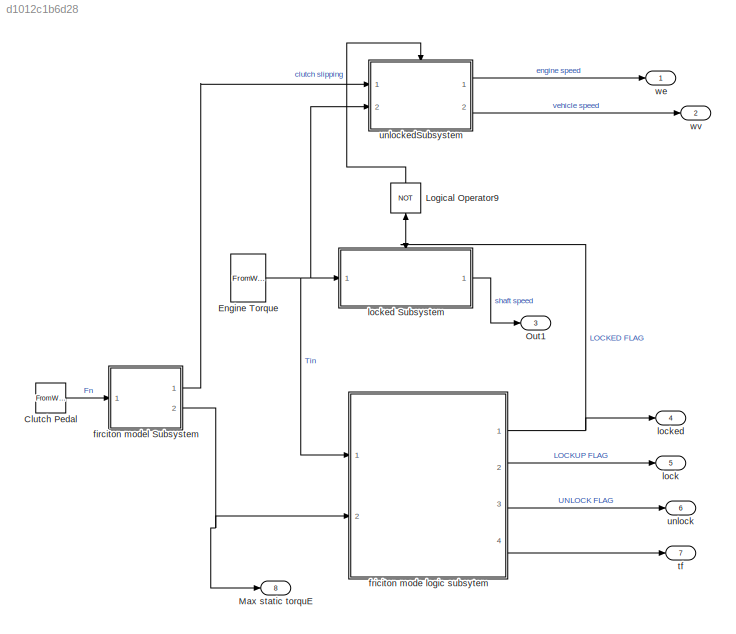
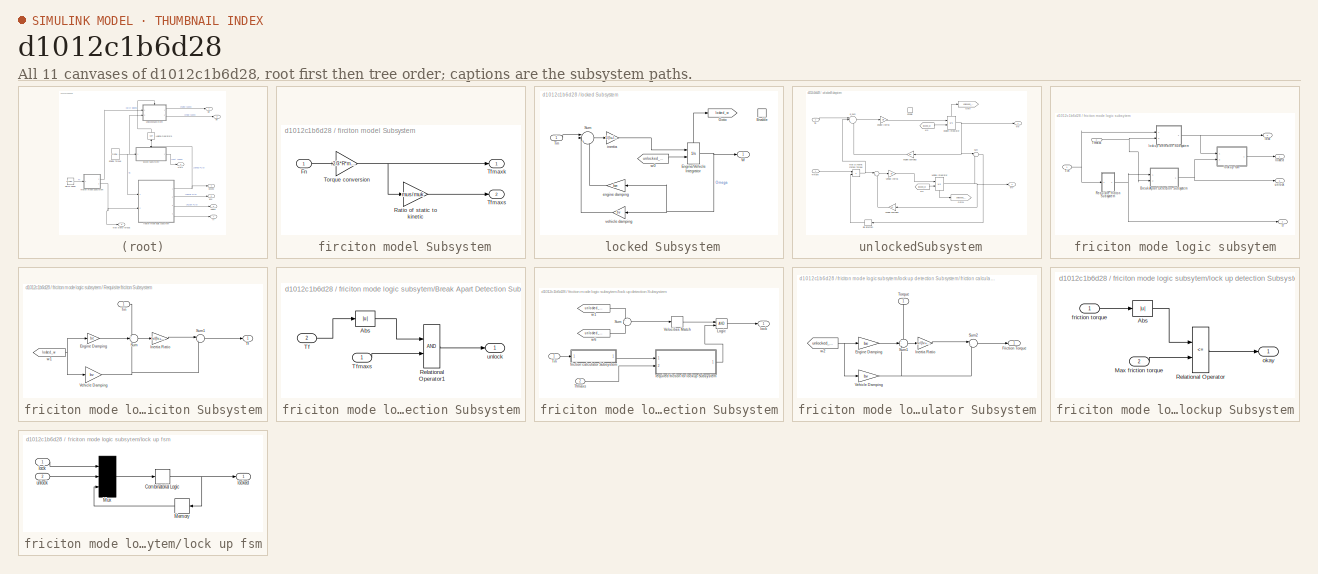
[diagram: thumbnail index - all 11 canvases of the model, root first then tree order]
MODEL slx_d1012c1b6d28
KIND model
CONFIG AbsTol = auto
CONFIG EnableMultiTasking = off
CONFIG FixedStep = auto
CONFIG MaxStep = auto
CONFIG MinStep = auto
CONFIG RelTol = 1e-3
CONFIG SampleTimeConstraint = Unconstrained
CONFIG Solver = VariableStepAuto
CONFIG SolverName = VariableStepAuto
CONFIG StartTime = 0.0
CONFIG StopTime = 10.0
BLOCK [SubSystem]  firciton model Subsystem
  Ports = [1, 2]
  RequestExecContextInheritance = off
BLOCK [Inport]  firciton model Subsystem/Fn
BLOCK [Gain]  firciton model Subsystem/Ratio of static to kinetic
  Gain = mus/muk
  OutDataTypeStr = Inherit: Same as input
  ParamDataTypeStr = Inherit: Same as input
  SaturateOnIntegerOverflow = on
BLOCK [Outport]  firciton model Subsystem/Tfmaxk
  InitialOutput = 0
  VectorParamsAs1DForOutWhenUnconnected = off
BLOCK [Outport]  firciton model Subsystem/Tfmaxs
  InitialOutput = 0
  Port = 2
  VectorParamsAs1DForOutWhenUnconnected = off
BLOCK [Gain]  firciton model Subsystem/Torque conversion
  Gain = 2/3*R*muk
  OutDataTypeStr = Inherit: Same as input
  ParamDataTypeStr = Inherit: Same as input
  SaturateOnIntegerOverflow = on
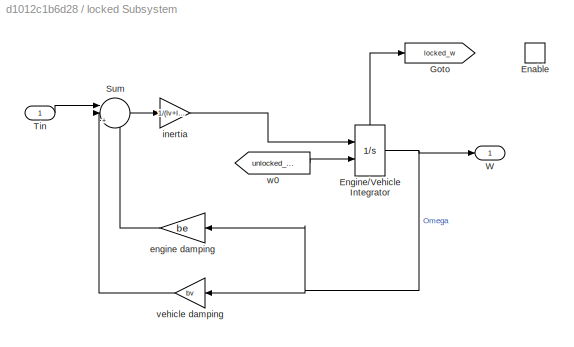
BLOCK [SubSystem]  locked Subsystem
  Ports = [1, 1, 1]
  RequestExecContextInheritance = off
BLOCK [EnablePort]  locked Subsystem/Enable
  Ports = []
BLOCK [Integrator]  locked Subsystem/Engine//Vehicle Integrator
  InitialConditionSource = external
  Ports = [2, 1, 0, 0, 1]
  ShowStatePort = on
BLOCK [Goto]  locked Subsystem/Goto
  GotoTag = locked_w
  NameLocation = top
  TagVisibility = global
BLOCK [Sum]  locked Subsystem/Sum
  InputSameDT = on
  Inputs = ||+--
  OutDataTypeStr = Inherit: Same as first input
  Ports = [3, 1]
  SaturateOnIntegerOverflow = on
BLOCK [Inport]  locked Subsystem/Tin
BLOCK [Outport]  locked Subsystem/W
BLOCK [Gain]  locked Subsystem/engine damping
  Gain = be
  NameLocation = top
BLOCK [Gain]  locked Subsystem/inertia
  Gain = 1/(Iv+Ie)
BLOCK [Gain]  locked Subsystem/vehicle damping
  Gain = bv
  NameLocation = top
BLOCK [From]  locked Subsystem/w0
  GotoTag = unlocked_we
  TagVisibility = global
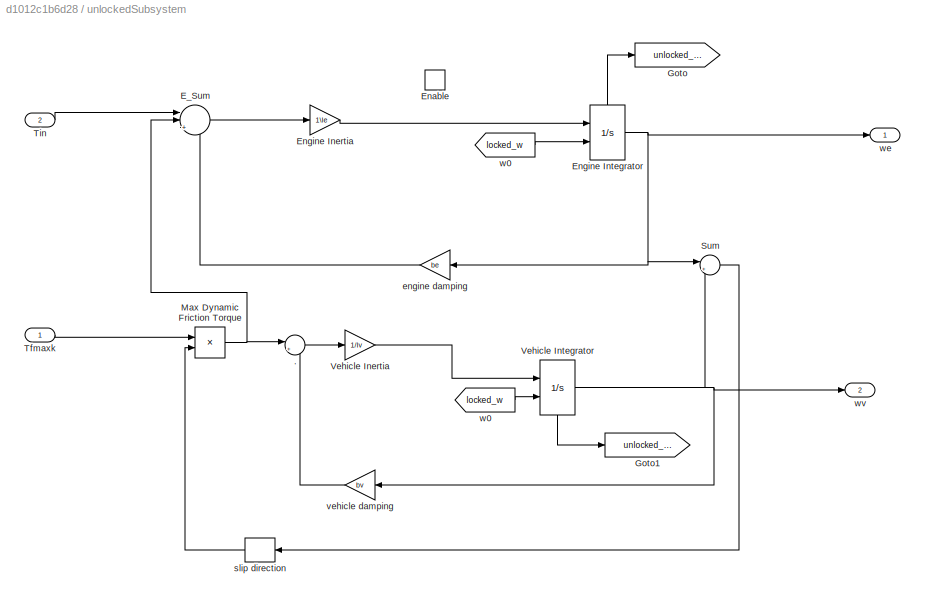
BLOCK [SubSystem]  unlockedSubsystem
  Ports = [2, 2, 1]
  RequestExecContextInheritance = off
BLOCK [Sum]  unlockedSubsystem/.
  InputSameDT = on
  Inputs = |+-
  NameLocation = top
  OutDataTypeStr = Inherit: Same as first input
  Ports = [2, 1]
  SaturateOnIntegerOverflow = on
BLOCK [Sum]  unlockedSubsystem/E_Sum
  InputSameDT = on
  Inputs = ||+--
  NameLocation = top
  OutDataTypeStr = Inherit: Same as first input
  Ports = [3, 1]
  SaturateOnIntegerOverflow = on
BLOCK [EnablePort]  unlockedSubsystem/Enable
  Ports = []
BLOCK [Gain]  unlockedSubsystem/Engine Inertia
  Gain = 1\Ie
BLOCK [Integrator]  unlockedSubsystem/Engine Integrator
  InitialConditionSource = external
  Ports = [2, 1, 0, 0, 1]
  ShowStatePort = on
BLOCK [Goto]  unlockedSubsystem/Goto
  GotoTag = unlocked_we
  TagVisibility = global
BLOCK [Goto]  unlockedSubsystem/Goto1
  GotoTag = unlocked_wv
  TagVisibility = global
BLOCK [Product]  unlockedSubsystem/Max Dynamic Friction Torque
  Ports = [2, 1]
BLOCK [Sum]  unlockedSubsystem/Sum
  Inputs = |+-
  Ports = [2, 1]
BLOCK [Inport]  unlockedSubsystem/Tfmaxk
BLOCK [Inport]  unlockedSubsystem/Tin
  Port = 2
BLOCK [Gain]  unlockedSubsystem/Vehicle Inertia
  Gain = 1/Iv
BLOCK [Integrator]  unlockedSubsystem/Vehicle Integrator
  InitialConditionSource = external
  NameLocation = top
  Ports = [2, 1, 0, 0, 1]
  ShowStatePort = on
BLOCK [Gain]  unlockedSubsystem/engine damping
  Gain = be
  NameLocation = top
BLOCK [Signum]  unlockedSubsystem/slip direction
BLOCK [Gain]  unlockedSubsystem/vehicle damping
  Gain = bv
  NameLocation = top
BLOCK [From]  unlockedSubsystem/w0
  GotoTag = locked_w
  TagVisibility = global
BLOCK [From]  unlockedSubsystem/w0 
  GotoTag = locked_w
  TagVisibility = global
BLOCK [Outport]  unlockedSubsystem/we
BLOCK [Outport]  unlockedSubsystem/wv
  Port = 2
BLOCK [FromWorkspace] Clutch Pedal
  VariableName = Fn
  ZeroCross = off
BLOCK [FromWorkspace] Engine Torque
  VariableName = Tin
  ZeroCross = off
BLOCK [Logic] Logical Operator9
  IconShape = distinctive
  Inputs = 1
  NameLocation = left
  Operator = NOT
  OutDataTypeStr = boolean
  Ports = [1, 1]
BLOCK [Outport] Max static torquE
  Port = 8
BLOCK [Outport] Out1
  Port = 3
BLOCK [SubSystem] friciton mode logic subsytem
  Ports = [2, 4]
  RequestExecContextInheritance = off
BLOCK [SubSystem] friciton mode logic subsytem/ Requisite friciton Subsystem
  Ports = [1, 1]
  RequestExecContextInheritance = off
BLOCK [Gain] friciton mode logic subsytem/ Requisite friciton Subsystem/Engine Damping
  Gain = be
  NameLocation = top
  OutDataTypeStr = Inherit: Same as input
  ParamDataTypeStr = Inherit: Same as input
  SaturateOnIntegerOverflow = on
BLOCK [Gain] friciton mode logic subsytem/ Requisite friciton Subsystem/Inertia Ratio
  Gain = Iv/(Iv+Ie)
  OutDataTypeStr = Inherit: Same as input
  ParamDataTypeStr = Inherit: Same as input
  SaturateOnIntegerOverflow = on
BLOCK [Sum] friciton mode logic subsytem/ Requisite friciton Subsystem/Sum
  InputSameDT = on
  Inputs = +--
  OutDataTypeStr = Inherit: Same as first input
  Ports = [3, 1]
  SaturateOnIntegerOverflow = on
BLOCK [Sum] friciton mode logic subsytem/ Requisite friciton Subsystem/Sum1
  InputSameDT = on
  Inputs = |++
  OutDataTypeStr = Inherit: Same as first input
  Ports = [2, 1]
  SaturateOnIntegerOverflow = on
BLOCK [Outport] friciton mode logic subsytem/ Requisite friciton Subsystem/Tf
  InitialOutput = 0
  VectorParamsAs1DForOutWhenUnconnected = off
BLOCK [Inport] friciton mode logic subsytem/ Requisite friciton Subsystem/Tin
BLOCK [Gain] friciton mode logic subsytem/ Requisite friciton Subsystem/Vehicle Damping
  Gain = bv
  OutDataTypeStr = Inherit: Same as input
  ParamDataTypeStr = Inherit: Same as input
  SaturateOnIntegerOverflow = on
BLOCK [From] friciton mode logic subsytem/ Requisite friciton Subsystem/w1
  GotoTag = locked_w
  NameLocation = top
  TagVisibility = global
BLOCK [SubSystem] friciton mode logic subsytem/Break Apart Detection Subsystem
  Ports = [2, 1]
  RequestExecContextInheritance = off
BLOCK [Abs] friciton mode logic subsytem/Break Apart Detection Subsystem/Abs
BLOCK [RelationalOperator] friciton mode logic subsytem/Break Apart Detection Subsystem/Relational Operator1
  OutDataTypeStr = boolean
  Ports = [2, 1]
BLOCK [Inport] friciton mode logic subsytem/Break Apart Detection Subsystem/Tf
  Port = 2
BLOCK [Inport] friciton mode logic subsytem/Break Apart Detection Subsystem/Tfmaxs
BLOCK [Outport] friciton mode logic subsytem/Break Apart Detection Subsystem/unlock
BLOCK [Inport] friciton mode logic subsytem/Tfmaxs
  Port = 2
BLOCK [Inport] friciton mode logic subsytem/Tin
BLOCK [Outport] friciton mode logic subsytem/lock
  Port = 2
BLOCK [SubSystem] friciton mode logic subsytem/lock up detection Subsystem
  Ports = [2, 1]
  RequestExecContextInheritance = off
BLOCK [SubSystem] friciton mode logic subsytem/lock up detection Subsystem/ friction calculator Subsystem
  Ports = [1, 1]
  RequestExecContextInheritance = off
BLOCK [Gain] friciton mode logic subsytem/lock up detection Subsystem/ friction calculator Subsystem/Engine Damping
  Gain = be
  NameLocation = top
  OutDataTypeStr = Inherit: Same as input
  ParamDataTypeStr = Inherit: Same as input
  SaturateOnIntegerOverflow = on
BLOCK [Outport] friciton mode logic subsytem/lock up detection Subsystem/ friction calculator Subsystem/Friction Torque
  InitialOutput = 0
  VectorParamsAs1DForOutWhenUnconnected = off
BLOCK [Gain] friciton mode logic subsytem/lock up detection Subsystem/ friction calculator Subsystem/Inertia Ratio
  Gain = Iv/(Iv+Ie)
  OutDataTypeStr = Inherit: Same as input
  ParamDataTypeStr = Inherit: Same as input
  SaturateOnIntegerOverflow = on
BLOCK [Sum] friciton mode logic subsytem/lock up detection Subsystem/ friction calculator Subsystem/Sum1
  InputSameDT = on
  Inputs = +--
  OutDataTypeStr = Inherit: Same as first input
  Ports = [3, 1]
  SaturateOnIntegerOverflow = on
BLOCK [Sum] friciton mode logic subsytem/lock up detection Subsystem/ friction calculator Subsystem/Sum2
  InputSameDT = on
  Inputs = |++
  OutDataTypeStr = Inherit: Same as first input
  Ports = [2, 1]
  SaturateOnIntegerOverflow = on
BLOCK [Inport] friciton mode logic subsytem/lock up detection Subsystem/ friction calculator Subsystem/Torque
  NameLocation = left
BLOCK [Gain] friciton mode logic subsytem/lock up detection Subsystem/ friction calculator Subsystem/Vehicle Damping
  Gain = bv
  OutDataTypeStr = Inherit: Same as input
  ParamDataTypeStr = Inherit: Same as input
  SaturateOnIntegerOverflow = on
BLOCK [From] friciton mode logic subsytem/lock up detection Subsystem/ friction calculator Subsystem/w2
  GotoTag = unlocked_we
  TagVisibility = global
BLOCK [SubSystem] friciton mode logic subsytem/lock up detection Subsystem/ required  friction for lockup Subsystem
  Ports = [2, 1]
  RequestExecContextInheritance = off
BLOCK [Abs] friciton mode logic subsytem/lock up detection Subsystem/ required  friction for lockup Subsystem/Abs
BLOCK [Inport] friciton mode logic subsytem/lock up detection Subsystem/ required  friction for lockup Subsystem/Max friction torque
  Port = 2
BLOCK [RelationalOperator] friciton mode logic subsytem/lock up detection Subsystem/ required  friction for lockup Subsystem/Relational Operator
  Operator = <=
  OutDataTypeStr = boolean
  Ports = [2, 1]
BLOCK [Inport] friciton mode logic subsytem/lock up detection Subsystem/ required  friction for lockup Subsystem/friction torque
BLOCK [Outport] friciton mode logic subsytem/lock up detection Subsystem/ required  friction for lockup Subsystem/okay
BLOCK [Logic] friciton mode logic subsytem/lock up detection Subsystem/Logic
  AttributesFormatString = (%<Operator>)
  IconShape = distinctive
  OutDataTypeStr = boolean
  Ports = [2, 1]
BLOCK [Sum] friciton mode logic subsytem/lock up detection Subsystem/Sum
  InputSameDT = on
  Inputs = +-
  OutDataTypeStr = Inherit: Same as first input
  Ports = [2, 1]
  SaturateOnIntegerOverflow = on
BLOCK [Inport] friciton mode logic subsytem/lock up detection Subsystem/Tfmaxs
  Port = 2
BLOCK [Inport] friciton mode logic subsytem/lock up detection Subsystem/Tin
BLOCK [HitCross] friciton mode logic subsytem/lock up detection Subsystem/Velocities Match
  Ports = [1, 1]
BLOCK [Outport] friciton mode logic subsytem/lock up detection Subsystem/lock
BLOCK [From] friciton mode logic subsytem/lock up detection Subsystem/w1
  GotoTag = unlocked_we
  TagVisibility = global
BLOCK [From] friciton mode logic subsytem/lock up detection Subsystem/w6
  GotoTag = unlocked_wv
  TagVisibility = global
BLOCK [SubSystem] friciton mode logic subsytem/lock up fsm
  Ports = [2, 1]
  RequestExecContextInheritance = off
BLOCK [CombinatorialLogic] friciton mode logic subsytem/lock up fsm/Combinatorial Logic
  TruthTable = [0;1;0;0;1;1;1;0]
BLOCK [Inport] friciton mode logic subsytem/lock up fsm/Iock
BLOCK [Memory] friciton mode logic subsytem/lock up fsm/Memory
BLOCK [Mux] friciton mode logic subsytem/lock up fsm/Mux
  Inputs = 3
  Ports = [3, 1]
BLOCK [Outport] friciton mode logic subsytem/lock up fsm/locked
BLOCK [Inport] friciton mode logic subsytem/lock up fsm/unlock
  Port = 2
BLOCK [Outport] friciton mode logic subsytem/locked
BLOCK [Outport] friciton mode logic subsytem/tf
  Port = 4
BLOCK [Outport] friciton mode logic subsytem/unlock
  Port = 3
BLOCK [Outport] lock
  Port = 5
BLOCK [Outport] locked
  Port = 4
BLOCK [Outport] tf
  Port = 7
BLOCK [Outport] unlock
  Port = 6
BLOCK [Outport] we
BLOCK [Outport] wv
  Port = 2
LINE  firciton model Subsystem/Fn:1 ->  firciton model Subsystem/Torque conversion:1
LINE  firciton model Subsystem/Ratio of static to kinetic:1 ->  firciton model Subsystem/Tfmaxs:1
NET  firciton model Subsystem/Torque conversion:1 ->  firciton model Subsystem/Ratio of static to kinetic:1,  firciton model Subsystem/Tfmaxk:1
LINE  firciton model Subsystem:1 ->  unlockedSubsystem:1
NET  firciton model Subsystem:2 -> Max static torquE:1, friciton mode logic subsytem:2
NET  locked Subsystem/Engine//Vehicle Integrator:1 ->  locked Subsystem/W:1,  locked Subsystem/engine damping:1,  locked Subsystem/vehicle damping:1
LINE  locked Subsystem/Engine//Vehicle Integrator:state ->  locked Subsystem/Goto:1
LINE  locked Subsystem/Sum:1 ->  locked Subsystem/inertia:1
LINE  locked Subsystem/Tin:1 ->  locked Subsystem/Sum:1
LINE  locked Subsystem/engine damping:1 ->  locked Subsystem/Sum:3
LINE  locked Subsystem/inertia:1 ->  locked Subsystem/Engine//Vehicle Integrator:1
LINE  locked Subsystem/vehicle damping:1 ->  locked Subsystem/Sum:2
LINE  locked Subsystem/w0:1 ->  locked Subsystem/Engine//Vehicle Integrator:2
LINE  locked Subsystem:1 -> Out1:1
LINE  unlockedSubsystem/.:1 ->  unlockedSubsystem/Vehicle Inertia:1
LINE  unlockedSubsystem/E_Sum:1 ->  unlockedSubsystem/Engine Inertia:1
LINE  unlockedSubsystem/Engine Inertia:1 ->  unlockedSubsystem/Engine Integrator:1
NET  unlockedSubsystem/Engine Integrator:1 ->  unlockedSubsystem/Sum:1,  unlockedSubsystem/engine damping:1,  unlockedSubsystem/we:1
LINE  unlockedSubsystem/Engine Integrator:state ->  unlockedSubsystem/Goto:1
NET  unlockedSubsystem/Max Dynamic Friction Torque:1 ->  unlockedSubsystem/.:1,  unlockedSubsystem/E_Sum:2
LINE  unlockedSubsystem/Sum:1 ->  unlockedSubsystem/slip direction:1
LINE  unlockedSubsystem/Tfmaxk:1 ->  unlockedSubsystem/Max Dynamic Friction Torque:1
LINE  unlockedSubsystem/Tin:1 ->  unlockedSubsystem/E_Sum:1
LINE  unlockedSubsystem/Vehicle Inertia:1 ->  unlockedSubsystem/Vehicle Integrator:1
NET  unlockedSubsystem/Vehicle Integrator:1 ->  unlockedSubsystem/Sum:2,  unlockedSubsystem/vehicle damping:1,  unlockedSubsystem/wv:1
LINE  unlockedSubsystem/Vehicle Integrator:state ->  unlockedSubsystem/Goto1:1
LINE  unlockedSubsystem/engine damping:1 ->  unlockedSubsystem/E_Sum:3
LINE  unlockedSubsystem/slip direction:1 ->  unlockedSubsystem/Max Dynamic Friction Torque:2
LINE  unlockedSubsystem/vehicle damping:1 ->  unlockedSubsystem/.:2
LINE  unlockedSubsystem/w0 :1 ->  unlockedSubsystem/Engine Integrator:2
LINE  unlockedSubsystem/w0:1 ->  unlockedSubsystem/Vehicle Integrator:2
LINE  unlockedSubsystem:1 -> we:1
LINE  unlockedSubsystem:2 -> wv:1
LINE Clutch Pedal:1 ->  firciton model Subsystem:1
NET Engine Torque:1 ->  locked Subsystem:1,  unlockedSubsystem:2, friciton mode logic subsytem:1
LINE Logical Operator9:1 ->  unlockedSubsystem:enable
LINE friciton mode logic subsytem/ Requisite friciton Subsystem/Engine Damping:1 -> friciton mode logic subsytem/ Requisite friciton Subsystem/Sum:2
LINE friciton mode logic subsytem/ Requisite friciton Subsystem/Inertia Ratio:1 -> friciton mode logic subsytem/ Requisite friciton Subsystem/Sum1:1
LINE friciton mode logic subsytem/ Requisite friciton Subsystem/Sum1:1 -> friciton mode logic subsytem/ Requisite friciton Subsystem/Tf:1
LINE friciton mode logic subsytem/ Requisite friciton Subsystem/Sum:1 -> friciton mode logic subsytem/ Requisite friciton Subsystem/Inertia Ratio:1
LINE friciton mode logic subsytem/ Requisite friciton Subsystem/Tin:1 -> friciton mode logic subsytem/ Requisite friciton Subsystem/Sum:1
NET friciton mode logic subsytem/ Requisite friciton Subsystem/Vehicle Damping:1 -> friciton mode logic subsytem/ Requisite friciton Subsystem/Sum1:2, friciton mode logic subsytem/ Requisite friciton Subsystem/Sum:3
NET friciton mode logic subsytem/ Requisite friciton Subsystem/w1:1 -> friciton mode logic subsytem/ Requisite friciton Subsystem/Engine Damping:1, friciton mode logic subsytem/ Requisite friciton Subsystem/Vehicle Damping:1
NET friciton mode logic subsytem/ Requisite friciton Subsystem:1 -> friciton mode logic subsytem/Break Apart Detection Subsystem:1, friciton mode logic subsytem/tf:1
LINE friciton mode logic subsytem/Break Apart Detection Subsystem/Abs:1 -> friciton mode logic subsytem/Break Apart Detection Subsystem/Relational Operator1:1
LINE friciton mode logic subsytem/Break Apart Detection Subsystem/Relational Operator1:1 -> friciton mode logic subsytem/Break Apart Detection Subsystem/unlock:1
LINE friciton mode logic subsytem/Break Apart Detection Subsystem/Tf:1 -> friciton mode logic subsytem/Break Apart Detection Subsystem/Abs:1
LINE friciton mode logic subsytem/Break Apart Detection Subsystem/Tfmaxs:1 -> friciton mode logic subsytem/Break Apart Detection Subsystem/Relational Operator1:2
NET friciton mode logic subsytem/Break Apart Detection Subsystem:1 -> friciton mode logic subsytem/lock up fsm:2, friciton mode logic subsytem/unlock:1
NET friciton mode logic subsytem/Tfmaxs:1 -> friciton mode logic subsytem/Break Apart Detection Subsystem:2, friciton mode logic subsytem/lock up detection Subsystem:2
NET friciton mode logic subsytem/Tin:1 -> friciton mode logic subsytem/ Requisite friciton Subsystem:1, friciton mode logic subsytem/lock up detection Subsystem:1
LINE friciton mode logic subsytem/lock up detection Subsystem/ friction calculator Subsystem/Engine Damping:1 -> friciton mode logic subsytem/lock up detection Subsystem/ friction calculator Subsystem/Sum1:2
LINE friciton mode logic subsytem/lock up detection Subsystem/ friction calculator Subsystem/Inertia Ratio:1 -> friciton mode logic subsytem/lock up detection Subsystem/ friction calculator Subsystem/Sum2:1
LINE friciton mode logic subsytem/lock up detection Subsystem/ friction calculator Subsystem/Sum1:1 -> friciton mode logic subsytem/lock up detection Subsystem/ friction calculator Subsystem/Inertia Ratio:1
LINE friciton mode logic subsytem/lock up detection Subsystem/ friction calculator Subsystem/Sum2:1 -> friciton mode logic subsytem/lock up detection Subsystem/ friction calculator Subsystem/Friction Torque:1
LINE friciton mode logic subsytem/lock up detection Subsystem/ friction calculator Subsystem/Torque:1 -> friciton mode logic subsytem/lock up detection Subsystem/ friction calculator Subsystem/Sum1:1
NET friciton mode logic subsytem/lock up detection Subsystem/ friction calculator Subsystem/Vehicle Damping:1 -> friciton mode logic subsytem/lock up detection Subsystem/ friction calculator Subsystem/Sum1:3, friciton mode logic subsytem/lock up detection Subsystem/ friction calculator Subsystem/Sum2:2
NET friciton mode logic subsytem/lock up detection Subsystem/ friction calculator Subsystem/w2:1 -> friciton mode logic subsytem/lock up detection Subsystem/ friction calculator Subsystem/Engine Damping:1, friciton mode logic subsytem/lock up detection Subsystem/ friction calculator Subsystem/Vehicle Damping:1
LINE friciton mode logic subsytem/lock up detection Subsystem/ friction calculator Subsystem:1 -> friciton mode logic subsytem/lock up detection Subsystem/ required  friction for lockup Subsystem:1
LINE friciton mode logic subsytem/lock up detection Subsystem/ required  friction for lockup Subsystem/Abs:1 -> friciton mode logic subsytem/lock up detection Subsystem/ required  friction for lockup Subsystem/Relational Operator:1
LINE friciton mode logic subsytem/lock up detection Subsystem/ required  friction for lockup Subsystem/Max friction torque:1 -> friciton mode logic subsytem/lock up detection Subsystem/ required  friction for lockup Subsystem/Relational Operator:2
LINE friciton mode logic subsytem/lock up detection Subsystem/ required  friction for lockup Subsystem/Relational Operator:1 -> friciton mode logic subsytem/lock up detection Subsystem/ required  friction for lockup Subsystem/okay:1
LINE friciton mode logic subsytem/lock up detection Subsystem/ required  friction for lockup Subsystem/friction torque:1 -> friciton mode logic subsytem/lock up detection Subsystem/ required  friction for lockup Subsystem/Abs:1
LINE friciton mode logic subsytem/lock up detection Subsystem/ required  friction for lockup Subsystem:1 -> friciton mode logic subsytem/lock up detection Subsystem/Logic:2
LINE friciton mode logic subsytem/lock up detection Subsystem/Logic:1 -> friciton mode logic subsytem/lock up detection Subsystem/lock:1
LINE friciton mode logic subsytem/lock up detection Subsystem/Sum:1 -> friciton mode logic subsytem/lock up detection Subsystem/Velocities Match:1
LINE friciton mode logic subsytem/lock up detection Subsystem/Tfmaxs:1 -> friciton mode logic subsytem/lock up detection Subsystem/ required  friction for lockup Subsystem:2
LINE friciton mode logic subsytem/lock up detection Subsystem/Tin:1 -> friciton mode logic subsytem/lock up detection Subsystem/ friction calculator Subsystem:1
LINE friciton mode logic subsytem/lock up detection Subsystem/Velocities Match:1 -> friciton mode logic subsytem/lock up detection Subsystem/Logic:1
LINE friciton mode logic subsytem/lock up detection Subsystem/w1:1 -> friciton mode logic subsytem/lock up detection Subsystem/Sum:1
LINE friciton mode logic subsytem/lock up detection Subsystem/w6:1 -> friciton mode logic subsytem/lock up detection Subsystem/Sum:2
NET friciton mode logic subsytem/lock up detection Subsystem:1 -> friciton mode logic subsytem/lock up fsm:1, friciton mode logic subsytem/lock:1
NET friciton mode logic subsytem/lock up fsm/Combinatorial Logic:1 -> friciton mode logic subsytem/lock up fsm/Memory:1, friciton mode logic subsytem/lock up fsm/locked:1
LINE friciton mode logic subsytem/lock up fsm/Iock:1 -> friciton mode logic subsytem/lock up fsm/Mux:1
LINE friciton mode logic subsytem/lock up fsm/Memory:1 -> friciton mode logic subsytem/lock up fsm/Mux:3
LINE friciton mode logic subsytem/lock up fsm/Mux:1 -> friciton mode logic subsytem/lock up fsm/Combinatorial Logic:1
LINE friciton mode logic subsytem/lock up fsm/unlock:1 -> friciton mode logic subsytem/lock up fsm/Mux:2
LINE friciton mode logic subsytem/lock up fsm:1 -> friciton mode logic subsytem/locked:1
NET friciton mode logic subsytem:1 ->  locked Subsystem:enable, Logical Operator9:1, locked:1
LINE friciton mode logic subsytem:2 -> lock:1
LINE friciton mode logic subsytem:3 -> unlock:1
LINE friciton mode logic subsytem:4 -> tf:1
note: NET lines group one-source signal fan-out (src -> all destinations, sorted); 1:1 wires keep LINE
